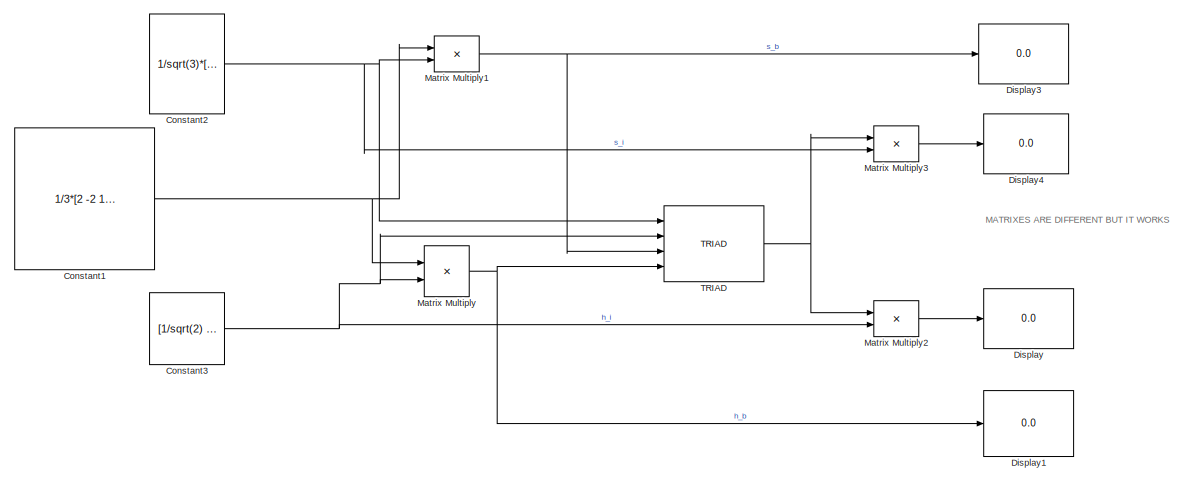
[diagram: root canvas - part 1/5, top left region]
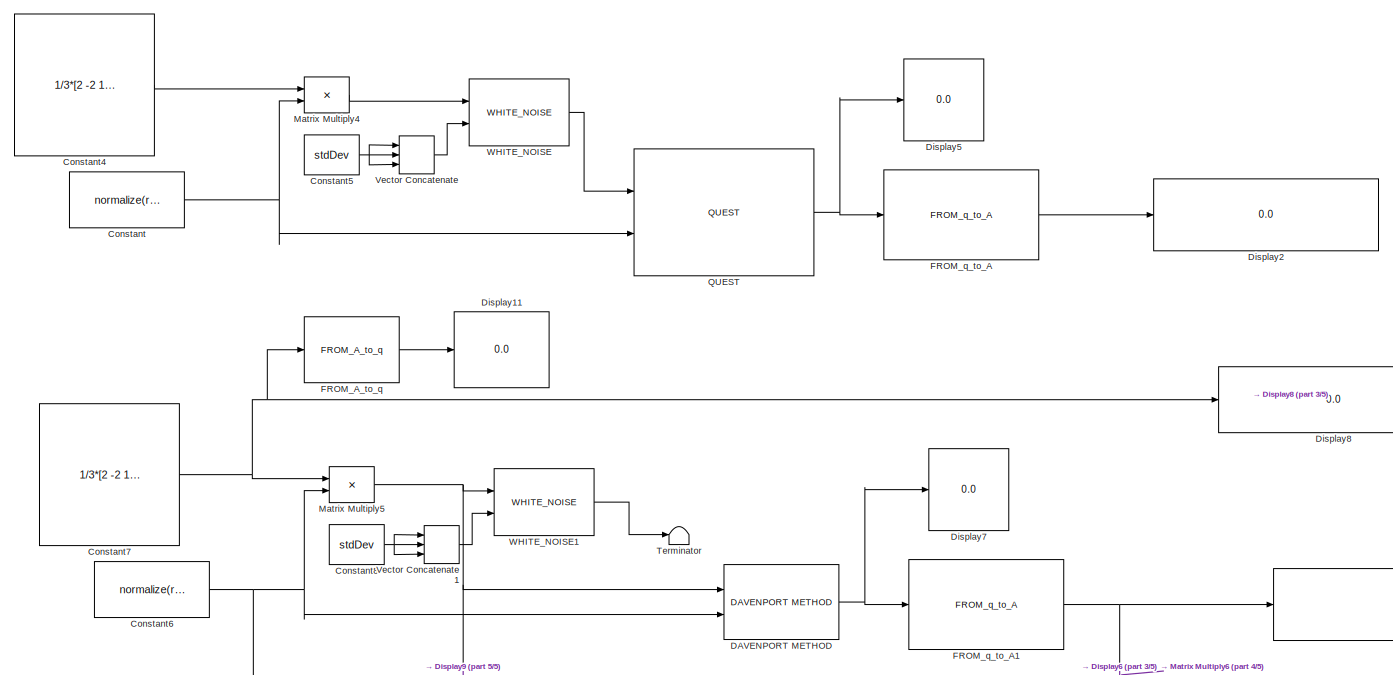
[diagram: root canvas - part 2/5, central region]
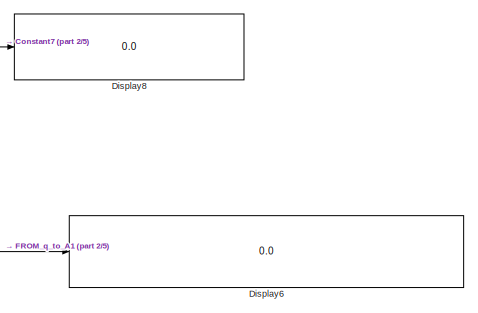
[diagram: root canvas - part 3/5, bottom right region]
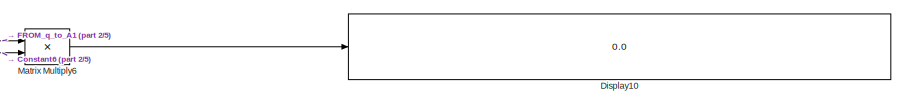
[diagram: root canvas - part 4/5, bottom right region]
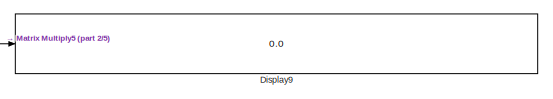
[diagram: root canvas - part 5/5, bottom right region]
MODEL slx_d21884930479
KIND model
CONFIG AbsTol = auto
CONFIG EnableMultiTasking = off
CONFIG FixedStep = auto
CONFIG MaxStep = auto
CONFIG MinStep = auto
CONFIG RelTol = 1e-3
CONFIG SampleTimeConstraint = Unconstrained
CONFIG SolverName = VariableStepAuto
CONFIG StartTime = 0.0
CONFIG StopTime = 10.0
BLOCK [Constant] Constant
  Value = normalize(rand(3,10),1)
BLOCK [Constant] Constant1
  Value = 1/3*[2 -2 1; 1 2 2; 2 1 -2]
BLOCK [Constant] Constant2
  Value = 1/sqrt(3)*[1 1 1]'
BLOCK [Constant] Constant3
  Value = [1/sqrt(2) 0 1/sqrt(2)]'
BLOCK [Constant] Constant4
  Value = 1/3*[2 -2 1; 1 2 2; 2 1 -2]
BLOCK [Constant] Constant5
  Value = stdDev
  VectorParams1D = off
BLOCK [Constant] Constant6
  Value = normalize(rand(3,10),1)
BLOCK [Constant] Constant7
  Value = 1/3*[2 -2 1; 1 2 2; 2 1 -2]
BLOCK [Constant] Constant8
  Value = stdDev
  VectorParams1D = off
BLOCK [Reference] DAVENPORT METHOD  REF=STATIC_ATT_DET/DAVENPORT METHOD
  Ports = [2, 1]
  SourceBlock = STATIC_ATT_DET/DAVENPORT METHOD
  SourceProductName = Attitude Determination (static)
  SourceType = SubSystem
BLOCK [Display] Display
  Decimation = 1
  Ports = [1]
BLOCK [Display] Display1
  Decimation = 1
  Ports = [1]
BLOCK [Display] Display10
  Decimation = 1
  Ports = [1]
BLOCK [Display] Display11
  Decimation = 1
  Ports = [1]
BLOCK [Display] Display2
  Decimation = 1
  Ports = [1]
BLOCK [Display] Display3
  Decimation = 1
  Ports = [1]
BLOCK [Display] Display4
  Decimation = 1
  Ports = [1]
BLOCK [Display] Display5
  Decimation = 1
  Ports = [1]
BLOCK [Display] Display6
  Decimation = 1
  Ports = [1]
BLOCK [Display] Display7
  Decimation = 1
  Ports = [1]
BLOCK [Display] Display8
  Decimation = 1
  Ports = [1]
BLOCK [Display] Display9
  Decimation = 1
  Ports = [1]
BLOCK [Reference] FROM_A_to_q  REF=kinematic_transform/FROM_A_to_q  (lib defined in slx_aea597a4063a)
  Ports = [1, 1]
  SourceBlock = kinematic_transform/FROM_A_to_q
  SourceProductName = Kinematic Transformation
  SourceType = SubSystem
BLOCK [Reference] FROM_q_to_A  REF=kinematic_transform/FROM_q_to_A  (lib defined in slx_aea597a4063a)
  Ports = [1, 1]
  SourceBlock = kinematic_transform/FROM_q_to_A
  SourceProductName = Kinematic Transformation
  SourceType = SubSystem
BLOCK [Reference] FROM_q_to_A1  REF=kinematic_transform/FROM_q_to_A  (lib defined in slx_aea597a4063a)
  Ports = [1, 1]
  SourceBlock = kinematic_transform/FROM_q_to_A
  SourceProductName = Kinematic Transformation
  SourceType = SubSystem
BLOCK [Product] Matrix Multiply
  Multiplication = Matrix(*)
  Ports = [2, 1]
BLOCK [Product] Matrix Multiply1
  Multiplication = Matrix(*)
  Ports = [2, 1]
BLOCK [Product] Matrix Multiply2
  Multiplication = Matrix(*)
  Ports = [2, 1]
BLOCK [Product] Matrix Multiply3
  Multiplication = Matrix(*)
  Ports = [2, 1]
BLOCK [Product] Matrix Multiply4
  Multiplication = Matrix(*)
  Ports = [2, 1]
BLOCK [Product] Matrix Multiply5
  Multiplication = Matrix(*)
  Ports = [2, 1]
BLOCK [Product] Matrix Multiply6
  Multiplication = Matrix(*)
  Ports = [2, 1]
BLOCK [Reference] QUEST  REF=STATIC_ATT_DET/QUEST
  Ports = [2, 1]
  SourceBlock = STATIC_ATT_DET/QUEST
  SourceProductName = Attitude Determination (static)
  SourceType = SubSystem
BLOCK [Reference] TRIAD  REF=STATIC_ATT_DET/TRIAD
  Ports = [4, 1]
  SourceBlock = STATIC_ATT_DET/TRIAD
  SourceProductName = Attitude Determination (static)
  SourceType = SubSystem
BLOCK [Terminator] Terminator
BLOCK [Concatenate] Vector Concatenate
  Mode = Multidimensional array
  NumInputs = 3
  Ports = [3, 1]
BLOCK [Concatenate] Vector Concatenate1
  Mode = Multidimensional array
  NumInputs = 3
  Ports = [3, 1]
BLOCK [Reference] WHITE_NOISE  REF=ERRORS/WHITE_NOISE
  Ports = [2, 1]
  SourceBlock = ERRORS/WHITE_NOISE
  SourceProductName = Errors
  SourceType = SubSystem
BLOCK [Reference] WHITE_NOISE1  REF=ERRORS/WHITE_NOISE
  Ports = [2, 1]
  SourceBlock = ERRORS/WHITE_NOISE
  SourceProductName = Errors
  SourceType = SubSystem
ANNOTATION (root): MATRIXES ARE DIFFERENT BUT IT WORKS
NET Constant1:1 -> Matrix Multiply1:1, Matrix Multiply:1
NET Constant2:1 -> Matrix Multiply1:2, Matrix Multiply3:2, TRIAD:1
NET Constant3:1 -> Matrix Multiply2:2, Matrix Multiply:2, TRIAD:2
LINE Constant4:1 -> Matrix Multiply4:1
NET Constant5:1 -> Vector Concatenate:1, Vector Concatenate:2, Vector Concatenate:3
NET Constant6:1 -> DAVENPORT METHOD:2, Matrix Multiply5:2, Matrix Multiply6:2
NET Constant7:1 -> Display8:1, FROM_A_to_q:1, Matrix Multiply5:1
NET Constant8:1 -> Vector Concatenate1:1, Vector Concatenate1:2, Vector Concatenate1:3
NET Constant:1 -> Matrix Multiply4:2, QUEST:2
NET DAVENPORT METHOD:1 -> Display7:1, FROM_q_to_A1:1
LINE FROM_A_to_q:1 -> Display11:1
NET FROM_q_to_A1:1 -> Display6:1, Matrix Multiply6:1
LINE FROM_q_to_A:1 -> Display2:1
NET Matrix Multiply1:1 -> Display3:1, TRIAD:3
LINE Matrix Multiply2:1 -> Display:1
LINE Matrix Multiply3:1 -> Display4:1
LINE Matrix Multiply4:1 -> WHITE_NOISE:1
NET Matrix Multiply5:1 -> DAVENPORT METHOD:1, Display9:1, WHITE_NOISE1:1
LINE Matrix Multiply6:1 -> Display10:1
NET Matrix Multiply:1 -> Display1:1, TRIAD:4
NET QUEST:1 -> Display5:1, FROM_q_to_A:1
NET TRIAD:1 -> Matrix Multiply2:1, Matrix Multiply3:1
LINE Vector Concatenate1:1 -> WHITE_NOISE1:2
LINE Vector Concatenate:1 -> WHITE_NOISE:2
LINE WHITE_NOISE1:1 -> Terminator:1
LINE WHITE_NOISE:1 -> QUEST:1
note: NET lines group one-source signal fan-out (src -> all destinations, sorted); 1:1 wires keep LINE
